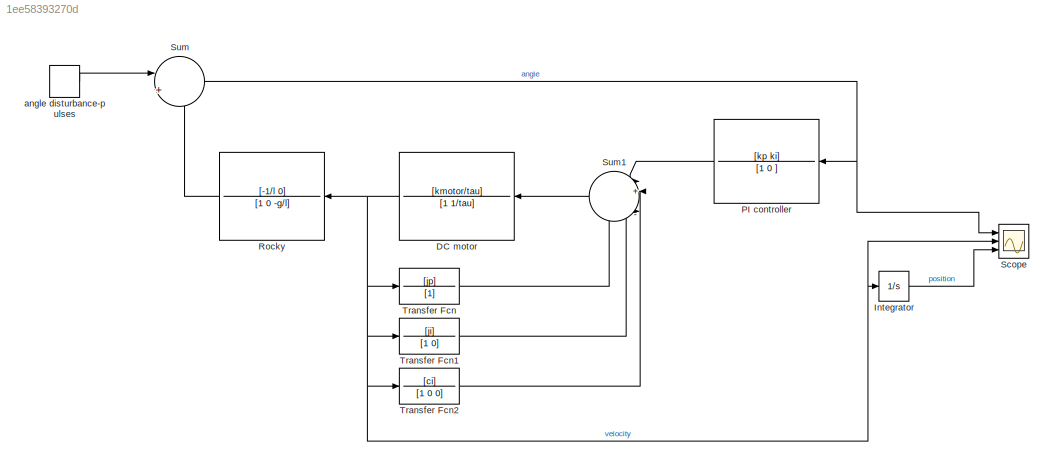
MODEL slx_1ee58393270d
KIND model
CONFIG AbsTol = auto
CONFIG EnableMultiTasking = off
CONFIG FixedStep = auto
CONFIG MaxStep = auto
CONFIG MinStep = auto
CONFIG RelTol = 1e-3
CONFIG SampleTimeConstraint = Unconstrained
CONFIG SolverName = VariableStepAuto
CONFIG StartTime = 0.0
CONFIG StopTime = 7
WORKSPACE source: mxarray member
WORKSPACE m = 1000
BLOCK [TransferFcn] DC motor
  Denominator = [1 1/tau]
  Numerator = [kmotor/tau]
BLOCK [Integrator] Integrator
  Ports = [1, 1]
BLOCK [TransferFcn] PI controller
  Denominator = [1 0 ]
  Numerator = [kp  ki]
BLOCK [TransferFcn] Rocky
  Denominator = [1 0 -g/l]
  Numerator = [-1/l    0]
BLOCK [Scope] Scope
  Floating = off
  NumInputPorts = 3
  Ports = [3]
  ScopeSpecificationString = Simulink.scopes.TimeScopeBlockCfg('CurrentConfiguration', extmgr.ConfigurationSet(extmgr.Configuration('Core','General UI',true),extmgr.Configuration('Core','Source UI',true),extmgr.Configuration('Sources','WiredSimulink',true,'DataLoggingVariableName','ScopeData1'),extmgr.Configuration('Visuals','Time Domain',true,'SerializedDisplays',{struct('MinYLimReal','-0.18002','MaxYLimReal','0.69694','YLab...<+1412ch>
BLOCK [Sum] Sum
  Inputs = |++
  Ports = [2, 1]
BLOCK [Sum] Sum1
  Inputs = |+|||---
  NameLocation = top
  Ports = [4, 1]
BLOCK [TransferFcn] Transfer Fcn
  Denominator = [1]
  Numerator = [jp]
BLOCK [TransferFcn] Transfer Fcn1
  Denominator = [1 0]
  Numerator = [ji]
BLOCK [TransferFcn] Transfer Fcn2
  Denominator = [1 0 0]
  Numerator = [ci]
BLOCK [DiscretePulseGenerator] angle disturbance-pulses
  Amplitude = .1
  Period = 10
  PhaseDelay = .5
  Ports = [0, 1]
  PulseType = Time based
  PulseWidth = .1
NET DC motor:1 -> Integrator:1, Rocky:1, Scope:2, Transfer Fcn1:1, Transfer Fcn2:1, Transfer Fcn:1
LINE Integrator:1 -> Scope:3
LINE PI controller:1 -> Sum1:1
LINE Rocky:1 -> Sum:2
LINE Sum1:1 -> DC motor:1
NET Sum:1 -> PI controller:1, Scope:1
LINE Transfer Fcn1:1 -> Sum1:3
LINE Transfer Fcn2:1 -> Sum1:2
LINE Transfer Fcn:1 -> Sum1:4
LINE angle disturbance-pulses:1 -> Sum:1
note: NET lines group one-source signal fan-out (src -> all destinations, sorted); 1:1 wires keep LINE
